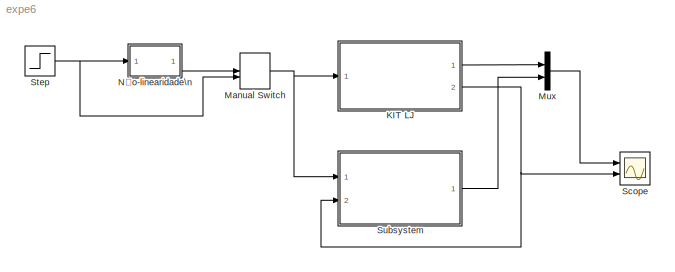
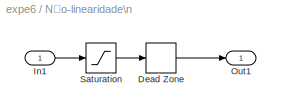
MODEL expe6
KIND model
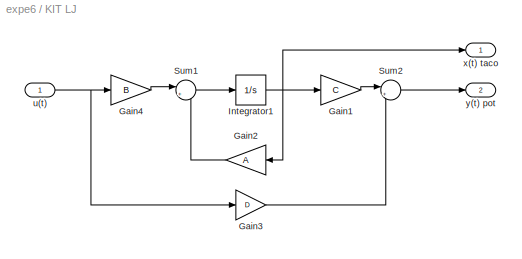
BLOCK [SubSystem] KIT LJ
  Ports = [1, 2]
  RequestExecContextInheritance = off
  SID = 38
BLOCK [Gain] KIT LJ/Gain1
  Gain = C
  Multiplication = Matrix(K*u)
  OutDataTypeStr = Inherit: Inherit via internal rule
  ParamDataTypeStr = Inherit: Inherit via internal rule
  SID = 8
  SaturateOnIntegerOverflow = off
BLOCK [Gain] KIT LJ/Gain2
  Gain = A
  Multiplication = Matrix(K*u)
  OutDataTypeStr = Inherit: Inherit via internal rule
  ParamDataTypeStr = Inherit: Inherit via internal rule
  SID = 9
  SaturateOnIntegerOverflow = off
BLOCK [Gain] KIT LJ/Gain3
  Gain = D
  Multiplication = Matrix(K*u)
  OutDataTypeStr = Inherit: Inherit via internal rule
  ParamDataTypeStr = Inherit: Inherit via internal rule
  SID = 11
  SaturateOnIntegerOverflow = off
BLOCK [Gain] KIT LJ/Gain4
  Gain = B
  Multiplication = Matrix(K*u)
  OutDataTypeStr = Inherit: Inherit via internal rule
  ParamDataTypeStr = Inherit: Inherit via internal rule
  SID = 14
  SaturateOnIntegerOverflow = off
BLOCK [Integrator] KIT LJ/Integrator1
  Ports = [1, 1]
  SID = 6
BLOCK [Sum] KIT LJ/Sum1
  IconShape = round
  InputSameDT = off
  Inputs = |++
  OutDataTypeStr = Inherit: Inherit via internal rule
  Ports = [2, 1]
  SID = 7
  SaturateOnIntegerOverflow = off
BLOCK [Sum] KIT LJ/Sum2
  IconShape = round
  InputSameDT = off
  Inputs = |++
  OutDataTypeStr = Inherit: Inherit via internal rule
  Ports = [2, 1]
  SID = 15
  SaturateOnIntegerOverflow = off
BLOCK [Inport] KIT LJ/u(t)
  IconDisplay = Port number
  SID = 39
BLOCK [Outport] KIT LJ/x(t) taco
  IconDisplay = Port number
  SID = 40
BLOCK [Outport] KIT LJ/y(t) pot
  IconDisplay = Port number
  Port = 2
  SID = 41
BLOCK [ManualSwitch] Manual Switch
  SID = 49
BLOCK [Mux] Mux
  DisplayOption = bar
  Inputs = 2
  Ports = [2, 1]
  SID = 51
BLOCK [SubSystem] Não-linearidade\n
  Ports = [1, 1]
  RequestExecContextInheritance = off
  SID = 46
BLOCK [DeadZone] Não-linearidade\n/Dead Zone
  LowerValue = -0.2
  SID = 19
  UpperValue = 0.2
BLOCK [Inport] Não-linearidade\n/In1
  IconDisplay = Port number
  SID = 47
BLOCK [Outport] Não-linearidade\n/Out1
  IconDisplay = Port number
  SID = 48
BLOCK [Saturate] Não-linearidade\n/Saturation
  InputPortMap = u0
  LowerLimit = -5
  Ports = [1, 1]
  SID = 16
  UpperLimit = 5
BLOCK [Scope] Scope
  Floating = off
  NumInputPorts = 2
  Ports = [2]
  SID = 50
  ShowLegends = off
  YMax = 5~5
  YMin = -5~-5
  ZoomMode = yonly
BLOCK [Step] Step
  SID = 20
  SampleTime = 0
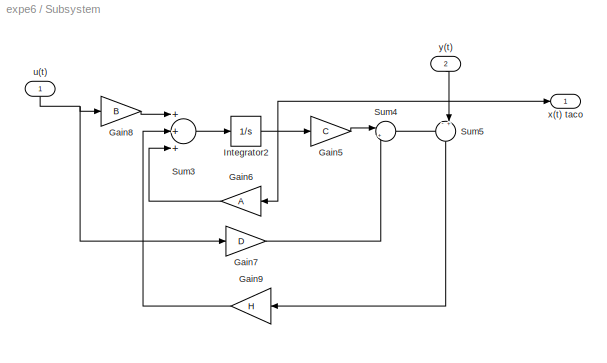
BLOCK [SubSystem] Subsystem
  Ports = [2, 1]
  RequestExecContextInheritance = off
  SID = 42
BLOCK [Gain] Subsystem/Gain5
  Gain = C
  Multiplication = Matrix(K*u)
  OutDataTypeStr = Inherit: Inherit via internal rule
  ParamDataTypeStr = Inherit: Inherit via internal rule
  SID = 21
  SaturateOnIntegerOverflow = off
BLOCK [Gain] Subsystem/Gain6
  Gain = A
  Multiplication = Matrix(K*u)
  OutDataTypeStr = Inherit: Inherit via internal rule
  ParamDataTypeStr = Inherit: Inherit via internal rule
  SID = 22
  SaturateOnIntegerOverflow = off
BLOCK [Gain] Subsystem/Gain7
  Gain = D
  Multiplication = Matrix(K*u)
  OutDataTypeStr = Inherit: Inherit via internal rule
  ParamDataTypeStr = Inherit: Inherit via internal rule
  SID = 23
  SaturateOnIntegerOverflow = off
BLOCK [Gain] Subsystem/Gain8
  Gain = B
  Multiplication = Matrix(K*u)
  OutDataTypeStr = Inherit: Inherit via internal rule
  ParamDataTypeStr = Inherit: Inherit via internal rule
  SID = 24
  SaturateOnIntegerOverflow = off
BLOCK [Gain] Subsystem/Gain9
  Gain = H
  Multiplication = Matrix(K*u)
  OutDataTypeStr = Inherit: Inherit via internal rule
  ParamDataTypeStr = Inherit: Inherit via internal rule
  SID = 30
  SaturateOnIntegerOverflow = off
BLOCK [Integrator] Subsystem/Integrator2
  Ports = [1, 1]
  SID = 25
BLOCK [Sum] Subsystem/Sum3
  InputSameDT = off
  Inputs = +++
  OutDataTypeStr = Inherit: Inherit via internal rule
  Ports = [3, 1]
  SID = 26
  SaturateOnIntegerOverflow = off
BLOCK [Sum] Subsystem/Sum4
  IconShape = round
  InputSameDT = off
  Inputs = |++
  OutDataTypeStr = Inherit: Inherit via internal rule
  Ports = [2, 1]
  SID = 27
  SaturateOnIntegerOverflow = off
BLOCK [Sum] Subsystem/Sum5
  IconShape = round
  InputSameDT = off
  Inputs = -+|
  OutDataTypeStr = Inherit: Inherit via internal rule
  Ports = [2, 1]
  SID = 29
  SaturateOnIntegerOverflow = off
BLOCK [Inport] Subsystem/u(t)
  IconDisplay = Port number
  SID = 43
BLOCK [Outport] Subsystem/x(t) taco
  IconDisplay = Port number
  SID = 45
BLOCK [Inport] Subsystem/y(t)
  IconDisplay = Port number
  Port = 2
  SID = 44
LINE KIT LJ/Gain1:1 -> KIT LJ/Sum2:1
LINE KIT LJ/Gain2:1 -> KIT LJ/Sum1:2
LINE KIT LJ/Gain3:1 -> KIT LJ/Sum2:2
LINE KIT LJ/Gain4:1 -> KIT LJ/Sum1:1
NET KIT LJ/Integrator1:1 -> KIT LJ/Gain1:1, KIT LJ/Gain2:1, KIT LJ/x(t) taco:1
LINE KIT LJ/Sum1:1 -> KIT LJ/Integrator1:1
LINE KIT LJ/Sum2:1 -> KIT LJ/y(t) pot:1
NET KIT LJ/u(t):1 -> KIT LJ/Gain3:1, KIT LJ/Gain4:1
LINE KIT LJ:1 -> Mux:1
NET KIT LJ:2 -> Scope:2, Subsystem:2
NET Manual Switch:1 -> KIT LJ:1, Subsystem:1
LINE Mux:1 -> Scope:1
LINE Não-linearidade\n/Dead Zone:1 -> Não-linearidade\n/Out1:1
LINE Não-linearidade\n/In1:1 -> Não-linearidade\n/Saturation:1
LINE Não-linearidade\n/Saturation:1 -> Não-linearidade\n/Dead Zone:1
LINE Não-linearidade\n:1 -> Manual Switch:1
NET Step:1 -> Manual Switch:2, Não-linearidade\n:1
LINE Subsystem/Gain5:1 -> Subsystem/Sum4:1
LINE Subsystem/Gain6:1 -> Subsystem/Sum3:3
LINE Subsystem/Gain7:1 -> Subsystem/Sum4:2
LINE Subsystem/Gain8:1 -> Subsystem/Sum3:1
LINE Subsystem/Gain9:1 -> Subsystem/Sum3:2
NET Subsystem/Integrator2:1 -> Subsystem/Gain5:1, Subsystem/Gain6:1, Subsystem/x(t) taco:1
LINE Subsystem/Sum3:1 -> Subsystem/Integrator2:1
LINE Subsystem/Sum4:1 -> Subsystem/Sum5:1
LINE Subsystem/Sum5:1 -> Subsystem/Gain9:1
NET Subsystem/u(t):1 -> Subsystem/Gain7:1, Subsystem/Gain8:1
LINE Subsystem/y(t):1 -> Subsystem/Sum5:2
LINE Subsystem:1 -> Mux:2
note: NET lines group one-source signal fan-out (src -> all destinations, sorted); 1:1 wires keep LINE
